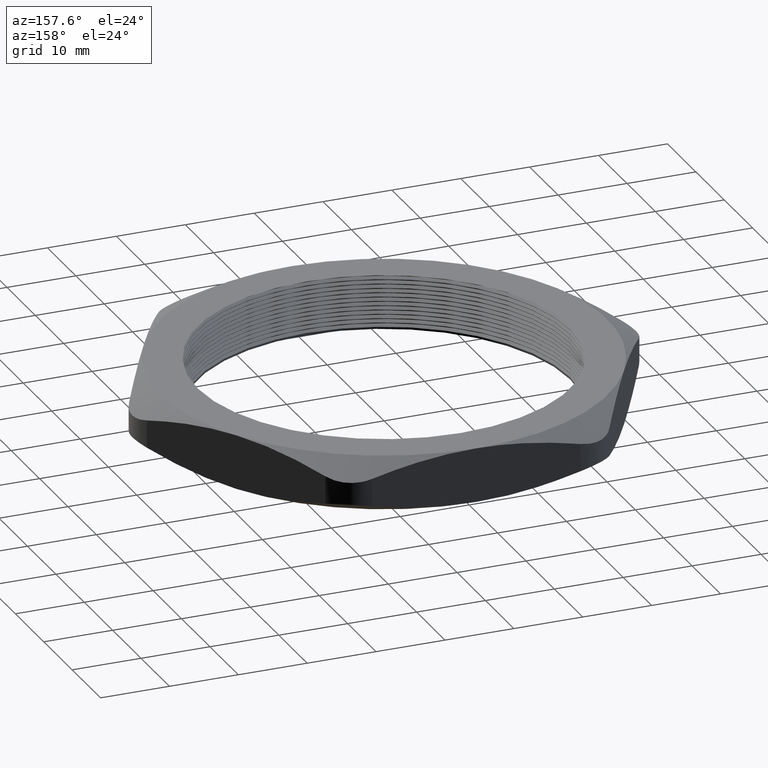
[diagram: clean part render]
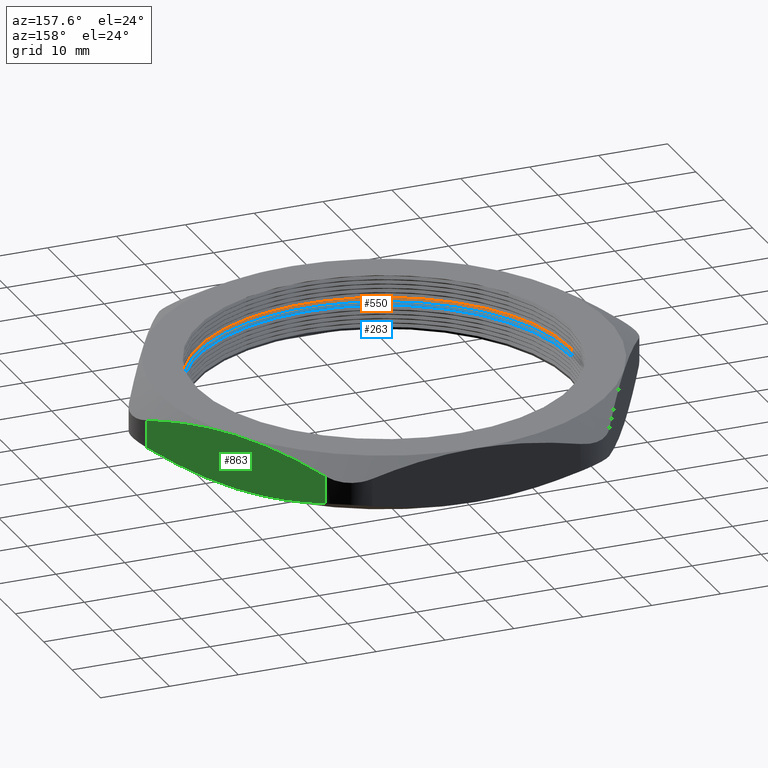
[diagram: same view with three faces highlighted in distinct colors, each labeled with its STEP entity id]
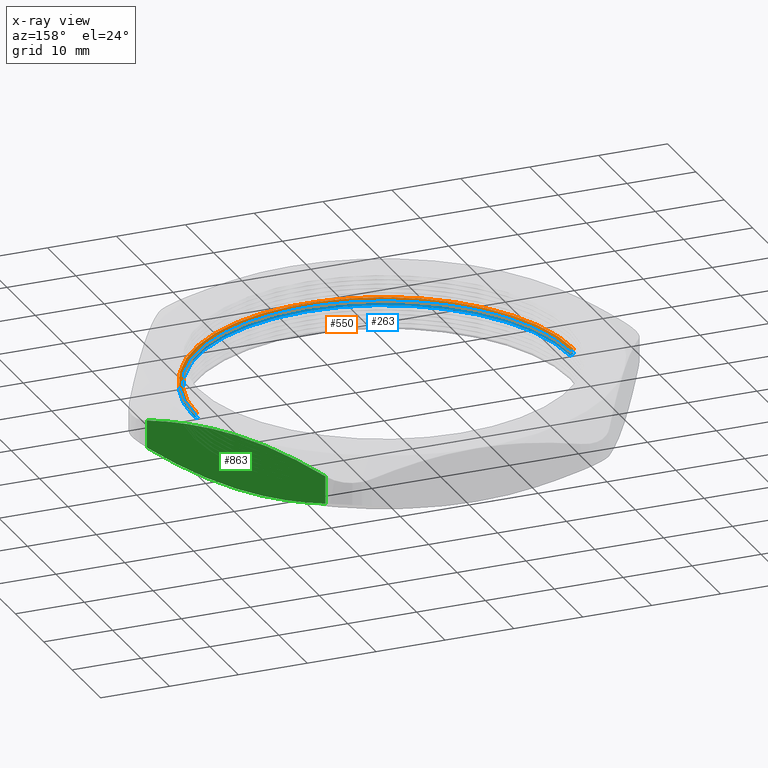
[diagram: x-ray of the same camera — body ghosted, the three highlighted faces saturated]
A machine part, auxiliary view with three faces highlighted in distinct colors.
The next image is the same camera in x-ray (body ghosted, the three faces saturated) — at least one of them is partly hidden behind the body in this view.
Their STEP definitions:

[orange] entity #550 — the highlighted conical surface has half-angle 60 deg.
#245 = VERTEX_POINT ( 'NONE', #1424 ) ;
#246 = ORIENTED_EDGE ( 'NONE', *, *, #267, .T. ) ;
#264 = ORIENTED_EDGE ( 'NONE', *, *, #265, .F. ) ;
#265 = EDGE_CURVE ( 'NONE', #268, #245, #1461, .T. ) ;
#267 = EDGE_CURVE ( 'NONE', #271, #245, #1505, .T. ) ;
#268 = VERTEX_POINT ( 'NONE', #1501 ) ;
#269 = EDGE_CURVE ( 'NONE', #277, #271, #1500, .T. ) ;
#270 = ORIENTED_EDGE ( 'NONE', *, *, #269, .T. ) ;
#271 = VERTEX_POINT ( 'NONE', #1496 ) ;
#273 = EDGE_CURVE ( 'NONE', #277, #268, #1494, .T. ) ;
#277 = VERTEX_POINT ( 'NONE', #1484 ) ;
#550 = ADVANCED_FACE ( 'NONE', ( #1930 ), #1996, .F. ) ;
#551 = EDGE_LOOP ( 'NONE', ( #552, #270, #246, #264 ) ) ;
#552 = ORIENTED_EDGE ( 'NONE', *, *, #273, .F. ) ;
#1424 = CARTESIAN_POINT ( 'NONE',  ( 1.085000000000000000, 1.328741777074878400E-016, 0.1734529946162077000 ) ) ;
#1453 = DIRECTION ( 'NONE',  ( 0.8660254037844346000, 0.0000000000000000000, 0.5000000000000068800 ) ) ;
#1454 = VECTOR ( 'NONE', #1453, 39.37007874015748100 ) ;
#1455 = CARTESIAN_POINT ( 'NONE',  ( 1.064999999999999900, 0.0000000000000000000, 0.1619059892324149800 ) ) ;
#1461 = LINE ( 'NONE', #1455, #1454 ) ;
#1484 = CARTESIAN_POINT ( 'NONE',  ( -1.064999999999999900, 0.0000000000000000000, 0.1619059892324149800 ) ) ;
#1490 = DIRECTION ( 'NONE',  ( 1.000000000000000000, 0.0000000000000000000, 0.0000000000000000000 ) ) ;
#1491 = DIRECTION ( 'NONE',  ( 0.0000000000000000000, 0.0000000000000000000, 1.000000000000000000 ) ) ;
#1492 = CARTESIAN_POINT ( 'NONE',  ( 0.0000000000000000000, 0.0000000000000000000, 0.1619059892324149800 ) ) ;
#1493 = AXIS2_PLACEMENT_3D ( 'NONE', #1492, #1491, #1490 ) ;
#1494 = CIRCLE ( 'NONE', #1493, 1.064999999999999900 ) ;
#1496 = CARTESIAN_POINT ( 'NONE',  ( -1.085000000000000000, 0.0000000000000000000, 0.1734529946162077000 ) ) ;
#1497 = DIRECTION ( 'NONE',  ( -0.8660254037844346000, 1.060575238724902100E-016, 0.5000000000000068800 ) ) ;
#1498 = VECTOR ( 'NONE', #1497, 39.37007874015748100 ) ;
#1499 = CARTESIAN_POINT ( 'NONE',  ( -1.064999999999999900, 1.304248841091931100E-016, 0.1619059892324149800 ) ) ;
#1500 = LINE ( 'NONE', #1499, #1498 ) ;
#1501 = CARTESIAN_POINT ( 'NONE',  ( 1.064999999999999900, 1.304248841091931100E-016, 0.1619059892324149800 ) ) ;
#1502 = DIRECTION ( 'NONE',  ( 1.000000000000000000, 0.0000000000000000000, 0.0000000000000000000 ) ) ;
#1503 = DIRECTION ( 'NONE',  ( 0.0000000000000000000, 0.0000000000000000000, 1.000000000000000000 ) ) ;
#1504 = AXIS2_PLACEMENT_3D ( 'NONE', #1509, #1503, #1502 ) ;
#1505 = CIRCLE ( 'NONE', #1504, 1.085000000000000000 ) ;
#1509 = CARTESIAN_POINT ( 'NONE',  ( 0.0000000000000000000, 0.0000000000000000000, 0.1734529946162077000 ) ) ;
#1930 = FACE_OUTER_BOUND ( 'NONE', #551, .T. ) ;
#1992 = DIRECTION ( 'NONE',  ( 1.000000000000000000, 0.0000000000000000000, 0.0000000000000000000 ) ) ;
#1993 = DIRECTION ( 'NONE',  ( 0.0000000000000000000, 0.0000000000000000000, 1.000000000000000000 ) ) ;
#1994 = CARTESIAN_POINT ( 'NONE',  ( 0.0000000000000000000, 0.0000000000000000000, 0.1619059892324149800 ) ) ;
#1995 = AXIS2_PLACEMENT_3D ( 'NONE', #1994, #1993, #1992 ) ;
#1996 = CONICAL_SURFACE ( 'NONE', #1995, 1.064999999999999900, 1.047197551196589900 ) ;

[blue] entity #263 — the highlighted conical surface has half-angle 60 deg.
#244 = VERTEX_POINT ( 'NONE', #1425 ) ;
#247 = VERTEX_POINT ( 'NONE', #1423 ) ;
#248 = ORIENTED_EDGE ( 'NONE', *, *, #249, .F. ) ;
#249 = EDGE_CURVE ( 'NONE', #251, #247, #1422, .T. ) ;
#250 = VERTEX_POINT ( 'NONE', #1483 ) ;
#251 = VERTEX_POINT ( 'NONE', #1482 ) ;
#252 = ORIENTED_EDGE ( 'NONE', *, *, #256, .T. ) ;
#254 = ORIENTED_EDGE ( 'NONE', *, *, #255, .T. ) ;
#255 = EDGE_CURVE ( 'NONE', #250, #247, #1480, .T. ) ;
#256 = EDGE_CURVE ( 'NONE', #244, #250, #1481, .T. ) ;
#257 = ORIENTED_EDGE ( 'NONE', *, *, #259, .F. ) ;
#259 = EDGE_CURVE ( 'NONE', #244, #251, #1468, .T. ) ;
#262 = EDGE_LOOP ( 'NONE', ( #257, #252, #254, #248 ) ) ;
#263 = ADVANCED_FACE ( 'NONE', ( #1463 ), #1462, .F. ) ;
#1419 = DIRECTION ( 'NONE',  ( 0.8660254037844346000, 0.0000000000000000000, 0.5000000000000068800 ) ) ;
#1420 = VECTOR ( 'NONE', #1419, 39.37007874015748100 ) ;
#1421 = CARTESIAN_POINT ( 'NONE',  ( 1.064999999999999900, 0.0000000000000000000, 0.1369059892324149500 ) ) ;
#1422 = LINE ( 'NONE', #1421, #1420 ) ;
#1423 = CARTESIAN_POINT ( 'NONE',  ( 1.085000000000000000, 1.328741777074878400E-016, 0.1484529946162077300 ) ) ;
#1425 = CARTESIAN_POINT ( 'NONE',  ( -1.064999999999999900, 0.0000000000000000000, 0.1369059892324149500 ) ) ;
#1457 = DIRECTION ( 'NONE',  ( 1.000000000000000000, 0.0000000000000000000, 0.0000000000000000000 ) ) ;
#1458 = DIRECTION ( 'NONE',  ( 0.0000000000000000000, 0.0000000000000000000, 1.000000000000000000 ) ) ;
#1459 = CARTESIAN_POINT ( 'NONE',  ( 0.0000000000000000000, 0.0000000000000000000, 0.1369059892324149500 ) ) ;
#1460 = AXIS2_PLACEMENT_3D ( 'NONE', #1459, #1458, #1457 ) ;
#1462 = CONICAL_SURFACE ( 'NONE', #1460, 1.064999999999999900, 1.047197551196589900 ) ;
#1463 = FACE_OUTER_BOUND ( 'NONE', #262, .T. ) ;
#1464 = DIRECTION ( 'NONE',  ( 1.000000000000000000, 0.0000000000000000000, 0.0000000000000000000 ) ) ;
#1465 = DIRECTION ( 'NONE',  ( 0.0000000000000000000, 0.0000000000000000000, 1.000000000000000000 ) ) ;
#1466 = CARTESIAN_POINT ( 'NONE',  ( 0.0000000000000000000, 0.0000000000000000000, 0.1369059892324149500 ) ) ;
#1467 = AXIS2_PLACEMENT_3D ( 'NONE', #1466, #1465, #1464 ) ;
#1468 = CIRCLE ( 'NONE', #1467, 1.064999999999999900 ) ;
#1473 = DIRECTION ( 'NONE',  ( -0.8660254037844346000, 1.060575238724902100E-016, 0.5000000000000068800 ) ) ;
#1474 = VECTOR ( 'NONE', #1473, 39.37007874015748100 ) ;
#1475 = CARTESIAN_POINT ( 'NONE',  ( -1.064999999999999900, 1.304248841091931100E-016, 0.1369059892324149500 ) ) ;
#1476 = DIRECTION ( 'NONE',  ( 1.000000000000000000, 0.0000000000000000000, 0.0000000000000000000 ) ) ;
#1477 = DIRECTION ( 'NONE',  ( 0.0000000000000000000, 0.0000000000000000000, 1.000000000000000000 ) ) ;
#1478 = CARTESIAN_POINT ( 'NONE',  ( 0.0000000000000000000, 0.0000000000000000000, 0.1484529946162077300 ) ) ;
#1479 = AXIS2_PLACEMENT_3D ( 'NONE', #1478, #1477, #1476 ) ;
#1480 = CIRCLE ( 'NONE', #1479, 1.085000000000000000 ) ;
#1481 = LINE ( 'NONE', #1475, #1474 ) ;
#1482 = CARTESIAN_POINT ( 'NONE',  ( 1.064999999999999900, 1.304248841091931100E-016, 0.1369059892324149500 ) ) ;
#1483 = CARTESIAN_POINT ( 'NONE',  ( -1.085000000000000000, 0.0000000000000000000, 0.1484529946162077300 ) ) ;

[green] entity #863 — the highlighted planar face has unit normal (-0.866, -0.5, 0).
#8 = VERTEX_POINT ( 'NONE', #1012 ) ;
#9 = VERTEX_POINT ( 'NONE', #1011 ) ;
#12 = EDGE_CURVE ( 'NONE', #9, #8, #1010, .T. ) ;
#785 = EDGE_CURVE ( 'NONE', #786, #868, #2398, .T. ) ;
#786 = VERTEX_POINT ( 'NONE', #2399 ) ;
#787 = ORIENTED_EDGE ( 'NONE', *, *, #788, .F. ) ;
#788 = EDGE_CURVE ( 'NONE', #789, #786, #2441, .T. ) ;
#789 = VERTEX_POINT ( 'NONE', #2452 ) ;
#790 = ORIENTED_EDGE ( 'NONE', *, *, #791, .T. ) ;
#791 = EDGE_CURVE ( 'NONE', #789, #792, #2434, .T. ) ;
#792 = VERTEX_POINT ( 'NONE', #2430 ) ;
#793 = ORIENTED_EDGE ( 'NONE', *, *, #794, .F. ) ;
#794 = EDGE_CURVE ( 'NONE', #8, #792, #2429, .T. ) ;
#863 = ADVANCED_FACE ( 'NONE', ( #2660 ), #2656, .F. ) ;
#864 = EDGE_LOOP ( 'NONE', ( #865, #866, #869, #787, #790, #793 ) ) ;
#865 = ORIENTED_EDGE ( 'NONE', *, *, #12, .F. ) ;
#866 = ORIENTED_EDGE ( 'NONE', *, *, #867, .T. ) ;
#867 = EDGE_CURVE ( 'NONE', #9, #868, #2643, .T. ) ;
#868 = VERTEX_POINT ( 'NONE', #2639 ) ;
#869 = ORIENTED_EDGE ( 'NONE', *, *, #785, .F. ) ;
#1003 = CARTESIAN_POINT ( 'NONE',  ( 1.108512516844081900, 0.6400000000000000100, 0.3100000000000000000 ) ) ;
#1004 = CARTESIAN_POINT ( 'NONE',  ( 1.158976470902578900, 0.5525938676198615100, 0.3100000000000001100 ) ) ;
#1005 = CARTESIAN_POINT ( 'NONE',  ( 1.208939987255790400, 0.4660545187712997800, 0.3030321076345434700 ) ) ;
#1006 = CARTESIAN_POINT ( 'NONE',  ( 1.307993920598690400, 0.2944880735318571900, 0.2769396402133758000 ) ) ;
#1007 = CARTESIAN_POINT ( 'NONE',  ( 1.357087723787274900, 0.2094551120724411600, 0.2578622132226423000 ) ) ;
#1008 = CARTESIAN_POINT ( 'NONE',  ( 1.405847905476738500, 0.1250000000000004200, 0.2341395753052960500 ) ) ;
#1010 = B_SPLINE_CURVE_WITH_KNOTS ( 'NONE', 3,
 ( #1008, #1007, #1006, #1005, #1004, #1003 ),
 .UNSPECIFIED., .F., .F.,
 ( 4, 2, 4 ),
 ( 0.003768077590883910700, 0.01138065098538848200, 0.01899322437989306100 ),
 .UNSPECIFIED. ) ;
#1011 = CARTESIAN_POINT ( 'NONE',  ( 1.405847905476738500, 0.1250000000000004200, 0.2341395753052960500 ) ) ;
#1012 = CARTESIAN_POINT ( 'NONE',  ( 1.108512516844081900, 0.6400000000000000100, 0.3100000000000000000 ) ) ;
#2398 = B_SPLINE_CURVE_WITH_KNOTS ( 'NONE', 3,
 ( #2451, #2450, #2449, #2448, #2447, #2446, #2445, #2444, #2443, #2442 ),
 .UNSPECIFIED., .F., .F.,
 ( 4, 2, 2, 2, 4 ),
 ( 0.01899322437989306400, 0.02088828638684796200, 0.02278334839380286400, 0.02657347240771266300, 0.03415372043553224800 ),
 .UNSPECIFIED. ) ;
#2399 = CARTESIAN_POINT ( 'NONE',  ( 1.108512516844081500, 0.6399999999999999000, 0.0000000000000000000 ) ) ;
#2425 = CARTESIAN_POINT ( 'NONE',  ( 1.108512516844081900, 0.6400000000000000100, 0.3100000000000000000 ) ) ;
#2429 = B_SPLINE_CURVE_WITH_KNOTS ( 'NONE', 3,
 ( #2425, #2483, #2482, #2481, #2480, #2479, #2478, #2477, #2476, #2475 ),
 .UNSPECIFIED., .F., .F.,
 ( 4, 2, 2, 2, 4 ),
 ( 0.01899322437989306100, 0.02088828638684811200, 0.02278334839380315900, 0.02657347240771326700, 0.03415372043553346900 ),
 .UNSPECIFIED. ) ;
#2430 = CARTESIAN_POINT ( 'NONE',  ( 0.8111771282114246300, 1.154999999999999800, 0.2341395753052959700 ) ) ;
#2431 = DIRECTION ( 'NONE',  ( 0.0000000000000000000, 0.0000000000000000000, 1.000000000000000000 ) ) ;
#2432 = VECTOR ( 'NONE', #2431, 39.37007874015748100 ) ;
#2433 = CARTESIAN_POINT ( 'NONE',  ( 0.8111771282114245100, 1.155000000000000000, 0.3100000000000000000 ) ) ;
#2434 = LINE ( 'NONE', #2433, #2432 ) ;
#2435 = CARTESIAN_POINT ( 'NONE',  ( 1.108512516844081500, 0.6399999999999999000, 0.0000000000000000000 ) ) ;
#2436 = CARTESIAN_POINT ( 'NONE',  ( 1.058048562785584700, 0.7274061323801386300, 1.574013980724525900E-017 ) ) ;
#2437 = CARTESIAN_POINT ( 'NONE',  ( 1.008085046432372500, 0.8139454812287002500, 0.006967892365456507800 ) ) ;
#2438 = CARTESIAN_POINT ( 'NONE',  ( 0.9090311130894733700, 0.9855119264681429000, 0.03306035978662432600 ) ) ;
#2439 = CARTESIAN_POINT ( 'NONE',  ( 0.8599373099008880100, 1.070544887927558800, 0.05213778677735775300 ) ) ;
#2440 = CARTESIAN_POINT ( 'NONE',  ( 0.8111771282114245100, 1.154999999999999800, 0.07586042469470402600 ) ) ;
#2441 = B_SPLINE_CURVE_WITH_KNOTS ( 'NONE', 3,
 ( #2440, #2439, #2438, #2437, #2436, #2435 ),
 .UNSPECIFIED., .F., .F.,
 ( 4, 2, 4 ),
 ( 0.003768077590883905100, 0.01138065098538848500, 0.01899322437989306400 ),
 .UNSPECIFIED. ) ;
#2442 = CARTESIAN_POINT ( 'NONE',  ( 1.405847905476715200, 0.1250000000000409700, 0.07586042469469243800 ) ) ;
#2443 = CARTESIAN_POINT ( 'NONE',  ( 1.357189406177607500, 0.2092789930061501000, 0.05218725694840554300 ) ) ;
#2444 = CARTESIAN_POINT ( 'NONE',  ( 1.308149978651563600, 0.2942177730553510200, 0.03311349661659467000 ) ) ;
#2445 = CARTESIAN_POINT ( 'NONE',  ( 1.233843861240835100, 0.4229197437239100600, 0.01352200269154077600 ) ) ;
#2446 = CARTESIAN_POINT ( 'NONE',  ( 1.208950708344475500, 0.4660359493009853500, 0.008494105051136863900 ) ) ;
#2447 = CARTESIAN_POINT ( 'NONE',  ( 1.171406501563926100, 0.5310644229747686400, 0.003421162097210820700 ) ) ;
#2448 = CARTESIAN_POINT ( 'NONE',  ( 1.158857736063793700, 0.5527995223932648000, 0.002141065351997730200 ) ) ;
#2449 = CARTESIAN_POINT ( 'NONE',  ( 1.133689931715794000, 0.5963914382389539100, 0.0004293670209239507700 ) ) ;
#2450 = CARTESIAN_POINT ( 'NONE',  ( 1.121074933927116000, 0.6182412553463140200, -3.912803115925383200E-018 ) ) ;
#2451 = CARTESIAN_POINT ( 'NONE',  ( 1.108512516844081500, 0.6399999999999999000, 0.0000000000000000000 ) ) ;
#2452 = CARTESIAN_POINT ( 'NONE',  ( 0.8111771282114245100, 1.154999999999999800, 0.07586042469470402600 ) ) ;
#2475 = CARTESIAN_POINT ( 'NONE',  ( 0.8111771282114246300, 1.154999999999999800, 0.2341395753052959700 ) ) ;
#2476 = CARTESIAN_POINT ( 'NONE',  ( 0.8598356275105358800, 1.070721006993884000, 0.2578127430515862500 ) ) ;
#2477 = CARTESIAN_POINT ( 'NONE',  ( 0.9088750550365842800, 0.9857822269446766500, 0.2768865033834001500 ) ) ;
#2478 = CARTESIAN_POINT ( 'NONE',  ( 0.9831811724473185100, 0.8570802562761074000, 0.2964779973084571400 ) ) ;
#2479 = CARTESIAN_POINT ( 'NONE',  ( 1.008074325343679900, 0.8139640506990286600, 0.3015058949488617600 ) ) ;
#2480 = CARTESIAN_POINT ( 'NONE',  ( 1.045618532124231900, 0.7489355770252401600, 0.3065788379027886700 ) ) ;
#2481 = CARTESIAN_POINT ( 'NONE',  ( 1.058167297624365700, 0.7272004776067424500, 0.3078589346480020700 ) ) ;
#2482 = CARTESIAN_POINT ( 'NONE',  ( 1.083335101972367400, 0.6836085617610497800, 0.3095706329790761100 ) ) ;
#2483 = CARTESIAN_POINT ( 'NONE',  ( 1.095950099761046500, 0.6617587446536876700, 0.3099999999999998900 ) ) ;
#2639 = CARTESIAN_POINT ( 'NONE',  ( 1.405847905476715200, 0.1250000000000409700, 0.07586042469469243800 ) ) ;
#2640 = DIRECTION ( 'NONE',  ( 0.0000000000000000000, 0.0000000000000000000, -1.000000000000000000 ) ) ;
#2641 = VECTOR ( 'NONE', #2640, 39.37007874015748100 ) ;
#2642 = CARTESIAN_POINT ( 'NONE',  ( 1.405847905476738500, 0.1250000000000004200, 0.3100000000000000000 ) ) ;
#2643 = LINE ( 'NONE', #2642, #2641 ) ;
#2644 = DIRECTION ( 'NONE',  ( 0.4999999999999998300, -0.8660254037844386000, 0.0000000000000000000 ) ) ;
#2645 = DIRECTION ( 'NONE',  ( -0.8660254037844387100, -0.4999999999999998900, 0.0000000000000000000 ) ) ;
#2656 = PLANE ( 'NONE',  #2659 ) ;
#2657 = CARTESIAN_POINT ( 'NONE',  ( 1.478016689125441800, 1.886404317482009800E-016, 0.3100000000000000000 ) ) ;
#2659 = AXIS2_PLACEMENT_3D ( 'NONE', #2657, #2645, #2644 ) ;
#2660 = FACE_OUTER_BOUND ( 'NONE', #864, .T. ) ;